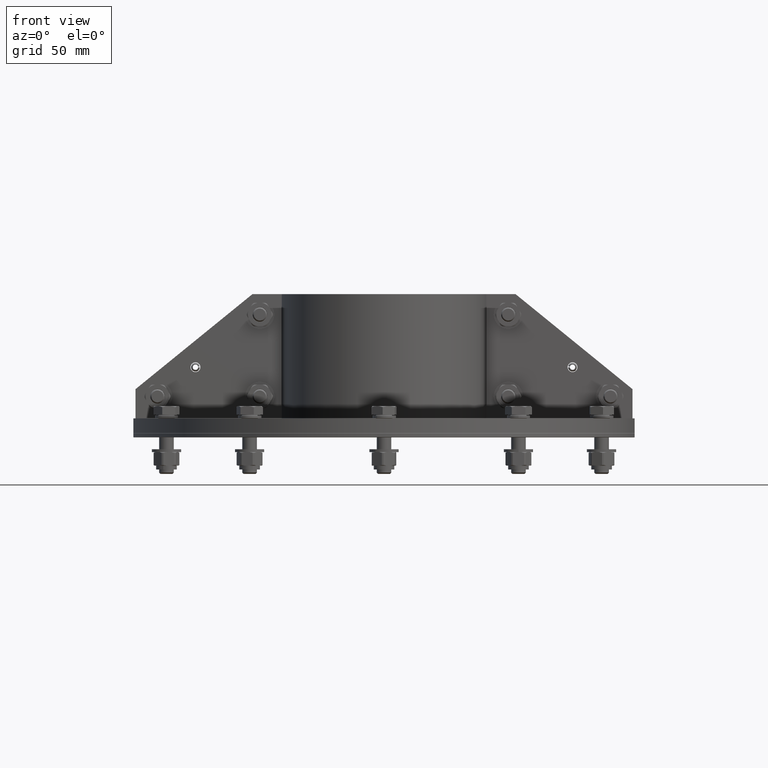
[diagram: clean part render]
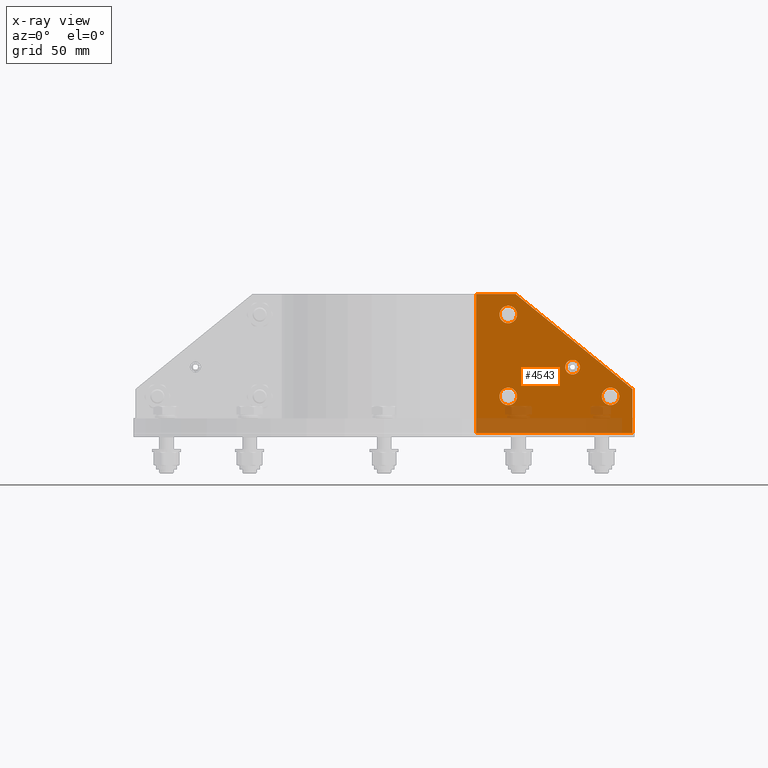
[diagram: x-ray — body ghosted, one internal face saturated and labeled with its STEP entity id]
A machine part, front view, then the same camera in x-ray: the body is ghosted and one INTERNAL B-rep face — a face not visible from any outside direction — is saturated and labeled: STEP entity #4543.
In plain terms, the highlighted planar face has unit normal (-0, 1, 0).
Its self-contained STEP definition (entity closure, byte-faithful):
#4257=CARTESIAN_POINT('',(-16.0,81.0,0.4));
#4258=VERTEX_POINT('',#4257);
#4259=CARTESIAN_POINT('',(-22.0,81.0,0.4));
#4260=DIRECTION('',(0.0,0.0,-1.0));
#4261=DIRECTION('',(-1.0,0.0,0.0));
#4262=AXIS2_PLACEMENT_3D('',#4259,#4260,#4261);
#4263=CIRCLE('',#4262,6.000000000000001);
#4264=EDGE_CURVE('',#4258,#4258,#4263,.T.);
#4285=CARTESIAN_POINT('',(-16.0,25.0,0.4));
#4286=VERTEX_POINT('',#4285);
#4287=CARTESIAN_POINT('',(-22.0,25.0,0.4));
#4288=DIRECTION('',(0.0,0.0,-1.0));
#4289=DIRECTION('',(-1.0,0.0,0.0));
#4290=AXIS2_PLACEMENT_3D('',#4287,#4288,#4289);
#4291=CIRCLE('',#4290,6.000000000000001);
#4292=EDGE_CURVE('',#4286,#4286,#4291,.T.);
#4313=CARTESIAN_POINT('',(-86.000000000000014,25.0,0.4));
#4314=VERTEX_POINT('',#4313);
#4315=CARTESIAN_POINT('',(-92.000000000000014,25.0,0.4));
#4316=DIRECTION('',(0.0,0.0,-1.0));
#4317=DIRECTION('',(-1.0,0.0,0.0));
#4318=AXIS2_PLACEMENT_3D('',#4315,#4316,#4317);
#4319=CIRCLE('',#4318,6.000000000000001);
#4320=EDGE_CURVE('',#4314,#4314,#4319,.T.);
#4341=CARTESIAN_POINT('',(-61.000000000000007,45.0,0.4));
#4342=VERTEX_POINT('',#4341);
#4343=CARTESIAN_POINT('',(-66.0,45.0,0.4));
#4344=DIRECTION('',(0.0,0.0,-1.0));
#4345=DIRECTION('',(-1.0,0.0,0.0));
#4346=AXIS2_PLACEMENT_3D('',#4343,#4344,#4345);
#4347=CIRCLE('',#4346,5.0);
#4348=EDGE_CURVE('',#4342,#4342,#4347,.T.);
#4369=CARTESIAN_POINT('',(-107.00000000000001,-1.310372E-014,0.4));
#4370=VERTEX_POINT('',#4369);
#4371=CARTESIAN_POINT('',(-107.00000000000003,29.999999999999986,0.4));
#4372=VERTEX_POINT('',#4371);
#4373=CARTESIAN_POINT('',(-107.00000000000001,-1.310372E-014,0.4));
#4374=DIRECTION('',(0.0,1.0,0.0));
#4375=VECTOR('',#4374,30.0);
#4376=LINE('',#4373,#4375);
#4377=EDGE_CURVE('',#4370,#4372,#4376,.T.);
#4409=CARTESIAN_POINT('',(-27.000000000000032,95.0,0.4));
#4410=VERTEX_POINT('',#4409);
#4411=CARTESIAN_POINT('',(-107.00000000000003,29.999999999999986,0.4));
#4412=DIRECTION('',(0.776114000116266,0.630592625094466,0.0));
#4413=VECTOR('',#4412,103.07764064044154);
#4414=LINE('',#4411,#4413);
#4415=EDGE_CURVE('',#4372,#4410,#4414,.T.);
#4440=CARTESIAN_POINT('',(-2.908536E-014,95.0,0.4));
#4441=VERTEX_POINT('',#4440);
#4442=CARTESIAN_POINT('',(-27.000000000000032,95.0,0.4));
#4443=DIRECTION('',(1.0,0.0,0.0));
#4444=VECTOR('',#4443,27.0);
#4445=LINE('',#4442,#4444);
#4446=EDGE_CURVE('',#4410,#4441,#4445,.T.);
#4471=CARTESIAN_POINT('',(0.0,0.0,0.4));
#4472=VERTEX_POINT('',#4471);
#4473=CARTESIAN_POINT('',(-2.908536E-014,95.0,0.4));
#4474=DIRECTION('',(0.0,-1.0,0.0));
#4475=VECTOR('',#4474,95.0);
#4476=LINE('',#4473,#4475);
#4477=EDGE_CURVE('',#4441,#4472,#4476,.T.);
#4502=CARTESIAN_POINT('',(0.0,0.0,0.4));
#4503=DIRECTION('',(-1.0,0.0,0.0));
#4504=VECTOR('',#4503,107.00000000000001);
#4505=LINE('',#4502,#4504);
#4506=EDGE_CURVE('',#4472,#4370,#4505,.T.);
#4519=CARTESIAN_POINT('',(-44.756152007193506,38.582477822485181,0.4));
#4520=DIRECTION('',(0.0,0.0,1.0));
#4521=DIRECTION('',(1.0,0.0,0.0));
#4522=AXIS2_PLACEMENT_3D('',#4519,#4520,#4521);
#4523=PLANE('',#4522);
#4524=ORIENTED_EDGE('',*,*,#4377,.F.);
#4525=ORIENTED_EDGE('',*,*,#4506,.F.);
#4526=ORIENTED_EDGE('',*,*,#4477,.F.);
#4527=ORIENTED_EDGE('',*,*,#4446,.F.);
#4528=ORIENTED_EDGE('',*,*,#4415,.F.);
#4529=EDGE_LOOP('',(#4524,#4525,#4526,#4527,#4528));
#4530=FACE_OUTER_BOUND('',#4529,.T.);
#4531=ORIENTED_EDGE('',*,*,#4264,.T.);
#4532=EDGE_LOOP('',(#4531));
#4533=FACE_BOUND('',#4532,.T.);
#4534=ORIENTED_EDGE('',*,*,#4292,.T.);
#4535=EDGE_LOOP('',(#4534));
#4536=FACE_BOUND('',#4535,.T.);
#4537=ORIENTED_EDGE('',*,*,#4320,.T.);
#4538=EDGE_LOOP('',(#4537));
#4539=FACE_BOUND('',#4538,.T.);
#4540=ORIENTED_EDGE('',*,*,#4348,.T.);
#4541=EDGE_LOOP('',(#4540));
#4542=FACE_BOUND('',#4541,.T.);
#4543=ADVANCED_FACE('',(#4530,#4533,#4536,#4539,#4542),#4523,.T.);